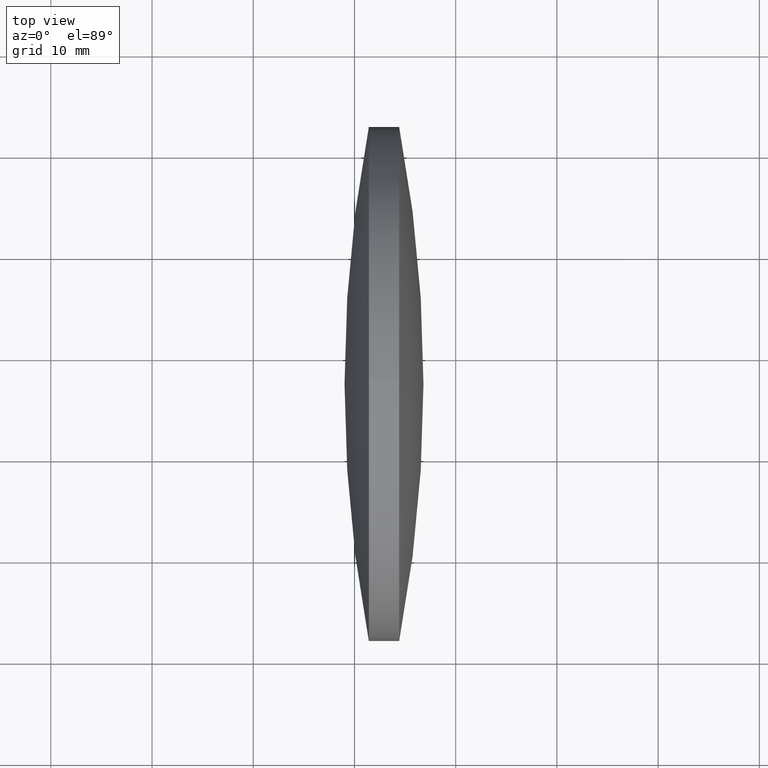
[diagram: clean part render]
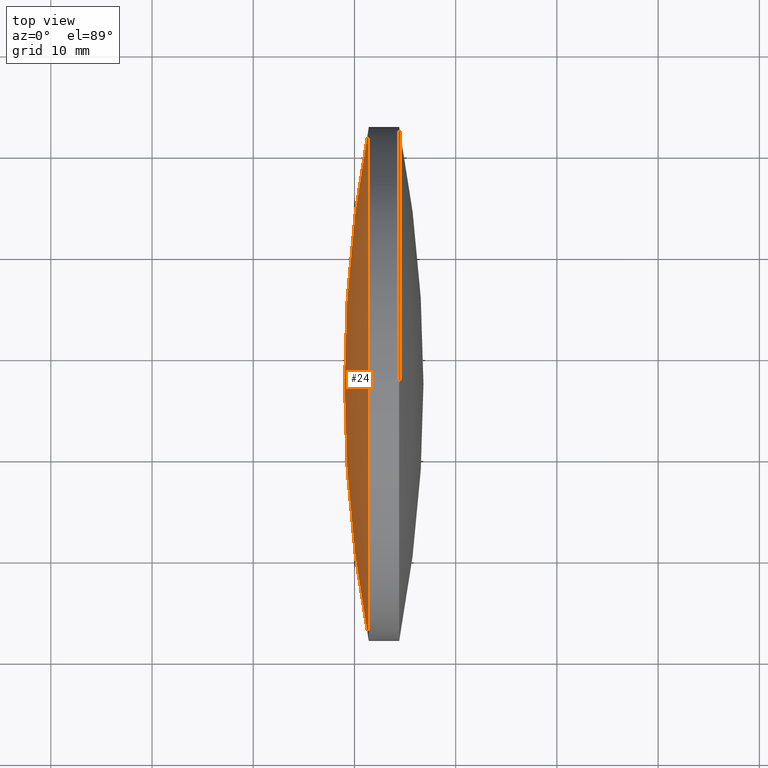
[diagram: same view with one face highlighted and labeled with its STEP entity id]
A machine part, top view. The second image highlights one B-rep face of the part: STEP entity #24.
In plain terms, the highlighted spherical surface has radius 135.608 mm.
Its self-contained STEP definition (entity closure, byte-faithful):
#3 = ORIENTED_EDGE ( 'NONE', *, *, #184, .T. ) ;
#5 = CARTESIAN_POINT ( 'NONE',  ( 171.4164086921822200, 97.23222604636956100, 25.39999999999999100 ) ) ;
#18 = DIRECTION ( 'NONE',  ( -1.000000000000000000, -0.0000000000000000000, -0.0000000000000000000 ) ) ;
#21 = ORIENTED_EDGE ( 'NONE', *, *, #314, .T. ) ;
#24 = ADVANCED_FACE ( 'NONE', ( #107 ), #230, .T. ) ;
#25 = DIRECTION ( 'NONE',  ( 0.0000000000000000000, 0.0000000000000000000, 1.000000000000000000 ) ) ;
#31 = CIRCLE ( 'NONE', #75, 25.39999999999999100 ) ;
#35 = CIRCLE ( 'NONE', #237, 25.39999999999999100 ) ;
#49 = CARTESIAN_POINT ( 'NONE',  ( 171.4164086921822200, 97.23222604636956100, 0.0000000000000000000 ) ) ;
#50 = VERTEX_POINT ( 'NONE', #5 ) ;
#58 = EDGE_CURVE ( 'NONE', #233, #90, #312, .T. ) ;
#61 = CIRCLE ( 'NONE', #322, 135.6077941589492500 ) ;
#65 = CARTESIAN_POINT ( 'NONE',  ( 171.4164086921822200, 97.23222604636956100, 0.0000000000000000000 ) ) ;
#68 = DIRECTION ( 'NONE',  ( -1.000000000000000000, -0.0000000000000000000, -0.0000000000000000000 ) ) ;
#75 = AXIS2_PLACEMENT_3D ( 'NONE', #49, #68, #25 ) ;
#90 = VERTEX_POINT ( 'NONE', #270 ) ;
#102 = CARTESIAN_POINT ( 'NONE',  ( 171.4164086921822200, 71.83222604636951300, -3.110602869834268200E-015 ) ) ;
#107 = FACE_OUTER_BOUND ( 'NONE', #155, .T. ) ;
#110 = DIRECTION ( 'NONE',  ( 0.0000000000000000000, 1.000000000000000000, 0.0000000000000000000 ) ) ;
#111 = ORIENTED_EDGE ( 'NONE', *, *, #227, .T. ) ;
#116 = CARTESIAN_POINT ( 'NONE',  ( 304.6241931368458000, 97.23222604636946200, 0.0000000000000000000 ) ) ;
#132 = DIRECTION ( 'NONE',  ( -0.0000000000000000000, 0.0000000000000000000, -1.000000000000000000 ) ) ;
#155 = EDGE_LOOP ( 'NONE', ( #307, #21, #3, #111 ) ) ;
#184 = EDGE_CURVE ( 'NONE', #50, #299, #31, .T. ) ;
#185 = DIRECTION ( 'NONE',  ( 1.000000000000000000, 0.0000000000000000000, 0.0000000000000000000 ) ) ;
#188 = CARTESIAN_POINT ( 'NONE',  ( 171.4164086921822200, 122.6322260463695000, 0.0000000000000000000 ) ) ;
#189 = DIRECTION ( 'NONE',  ( 0.0000000000000000000, 1.000000000000000000, 1.224646799147352700E-016 ) ) ;
#191 = DIRECTION ( 'NONE',  ( 0.0000000000000000000, 1.224646799147353200E-016, -1.000000000000000000 ) ) ;
#198 = DIRECTION ( 'NONE',  ( 0.0000000000000000000, 0.0000000000000000000, 1.000000000000000000 ) ) ;
#214 = CARTESIAN_POINT ( 'NONE',  ( 304.6241931368458000, 97.23222604636946200, 0.0000000000000000000 ) ) ;
#216 = CARTESIAN_POINT ( 'NONE',  ( 304.6241931368458000, 97.23222604636946200, 0.0000000000000000000 ) ) ;
#227 = EDGE_CURVE ( 'NONE', #299, #90, #61, .T. ) ;
#230 = SPHERICAL_SURFACE ( 'NONE', #274, 135.6077941589492800 ) ;
#233 = VERTEX_POINT ( 'NONE', #102 ) ;
#237 = AXIS2_PLACEMENT_3D ( 'NONE', #65, #18, #198 ) ;
#239 = DIRECTION ( 'NONE',  ( -0.0000000000000000000, 0.0000000000000000000, 1.000000000000000000 ) ) ;
#270 = CARTESIAN_POINT ( 'NONE',  ( 169.0163989778965300, 97.23222604636946200, 0.0000000000000000000 ) ) ;
#274 = AXIS2_PLACEMENT_3D ( 'NONE', #216, #132, #110 ) ;
#299 = VERTEX_POINT ( 'NONE', #188 ) ;
#307 = ORIENTED_EDGE ( 'NONE', *, *, #58, .F. ) ;
#312 = CIRCLE ( 'NONE', #334, 135.6077941589493000 ) ;
#314 = EDGE_CURVE ( 'NONE', #233, #50, #35, .T. ) ;
#322 = AXIS2_PLACEMENT_3D ( 'NONE', #214, #239, #185 ) ;
#334 = AXIS2_PLACEMENT_3D ( 'NONE', #116, #191, #189 ) ;